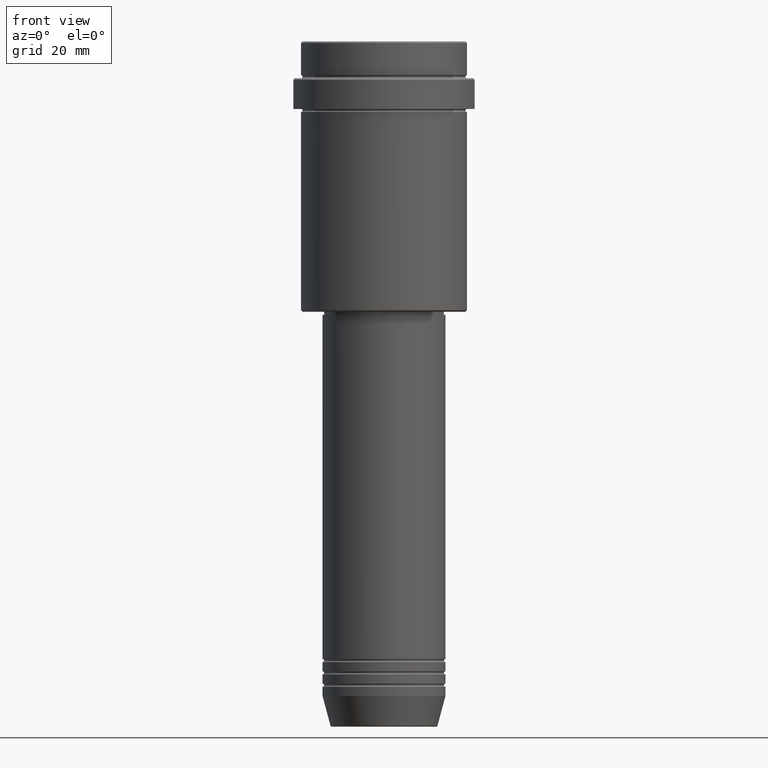
[diagram: clean part render]
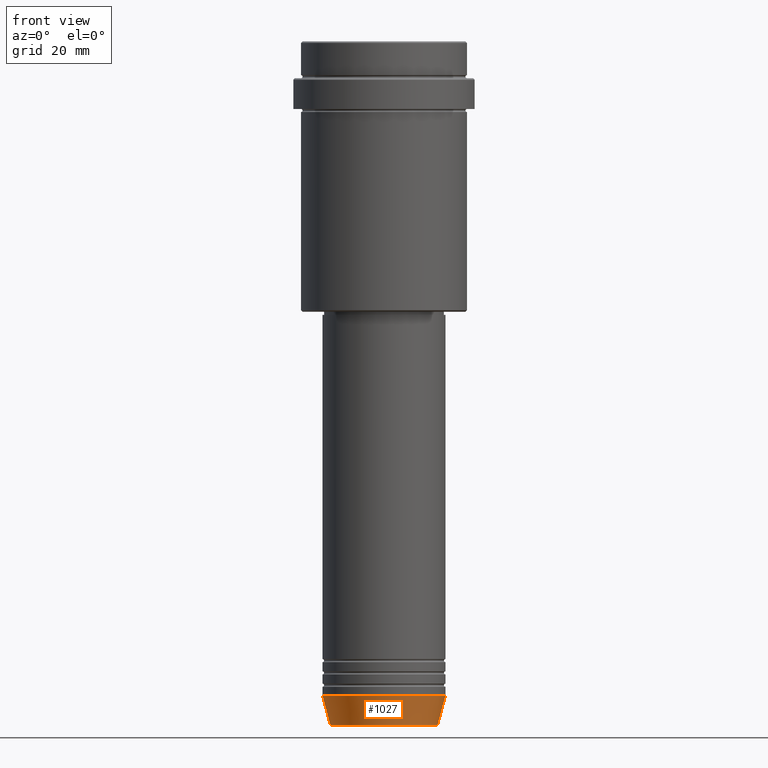
[diagram: same view with one face highlighted and labeled with its STEP entity id]
A machine part, front view. The second image highlights one B-rep face of the part: STEP entity #1027.
In plain terms, the highlighted conical surface has half-angle 15 deg.
Its self-contained STEP definition (entity closure, byte-faithful):
#33 = CONICAL_SURFACE ( 'NONE', #1088, 20.00000000000000000, 0.2617993877991499074 ) ;
#54 = CARTESIAN_POINT ( 'NONE',  ( 0.000000000000000000, 0.000000000000000000, -222.6294095225512706 ) ) ;
#98 = VECTOR ( 'NONE', #753, 1000.000000000000114 ) ;
#102 = ORIENTED_EDGE ( 'NONE', *, *, #857, .F. ) ;
#120 = DIRECTION ( 'NONE',  ( -0.000000000000000000, -0.000000000000000000, 1.000000000000000000 ) ) ;
#152 = CARTESIAN_POINT ( 'NONE',  ( 20.00000000000000000, 0.000000000000000000, -213.0000000000000284 ) ) ;
#162 = FACE_OUTER_BOUND ( 'NONE', #530, .T. ) ;
#164 = DIRECTION ( 'NONE',  ( -0.000000000000000000, -0.000000000000000000, 1.000000000000000000 ) ) ;
#200 = EDGE_CURVE ( 'NONE', #542, #664, #364, .T. ) ;
#217 = VERTEX_POINT ( 'NONE', #152 ) ;
#256 = CARTESIAN_POINT ( 'NONE',  ( 0.000000000000000000, 0.000000000000000000, -213.0000000000000284 ) ) ;
#284 = AXIS2_PLACEMENT_3D ( 'NONE', #256, #120, #362 ) ;
#297 = ORIENTED_EDGE ( 'NONE', *, *, #200, .F. ) ;
#304 = VECTOR ( 'NONE', #1264, 1000.000000000000114 ) ;
#306 = AXIS2_PLACEMENT_3D ( 'NONE', #54, #164, #597 ) ;
#362 = DIRECTION ( 'NONE',  ( 1.000000000000000000, 0.000000000000000000, 0.000000000000000000 ) ) ;
#364 = LINE ( 'NONE', #798, #304 ) ;
#439 = CARTESIAN_POINT ( 'NONE',  ( 20.00000000000000000, 0.000000000000000000, -213.0000000000000284 ) ) ;
#484 = DIRECTION ( 'NONE',  ( -0.000000000000000000, -0.000000000000000000, 1.000000000000000000 ) ) ;
#493 = CARTESIAN_POINT ( 'NONE',  ( -17.41980749484382329, 2.291302373663531915E-15, -222.6294095225512706 ) ) ;
#505 = DIRECTION ( 'NONE',  ( 1.000000000000000000, 0.000000000000000000, 0.000000000000000000 ) ) ;
#530 = EDGE_LOOP ( 'NONE', ( #297, #569, #1162, #102 ) ) ;
#542 = VERTEX_POINT ( 'NONE', #493 ) ;
#569 = ORIENTED_EDGE ( 'NONE', *, *, #614, .T. ) ;
#597 = DIRECTION ( 'NONE',  ( 1.000000000000000000, 0.000000000000000000, 0.000000000000000000 ) ) ;
#614 = EDGE_CURVE ( 'NONE', #542, #1063, #924, .T. ) ;
#664 = VERTEX_POINT ( 'NONE', #1173 ) ;
#753 = DIRECTION ( 'NONE',  ( 0.2588190451025211836, 0.000000000000000000, 0.9659258262890680902 ) ) ;
#798 = CARTESIAN_POINT ( 'NONE',  ( -20.00000000000000000, 2.449293598294706513E-15, -213.0000000000000284 ) ) ;
#857 = EDGE_CURVE ( 'NONE', #664, #217, #1285, .T. ) ;
#924 = CIRCLE ( 'NONE', #306, 17.41980749484382329 ) ;
#1027 = ADVANCED_FACE ( 'NONE', ( #162 ), #33, .T. ) ;
#1063 = VERTEX_POINT ( 'NONE', #1168 ) ;
#1082 = LINE ( 'NONE', #439, #98 ) ;
#1088 = AXIS2_PLACEMENT_3D ( 'NONE', #1253, #484, #505 ) ;
#1154 = EDGE_CURVE ( 'NONE', #1063, #217, #1082, .T. ) ;
#1162 = ORIENTED_EDGE ( 'NONE', *, *, #1154, .T. ) ;
#1168 = CARTESIAN_POINT ( 'NONE',  ( 17.41980749484382329, 0.000000000000000000, -222.6294095225512706 ) ) ;
#1173 = CARTESIAN_POINT ( 'NONE',  ( -20.00000000000000000, 2.449293598294706513E-15, -213.0000000000000284 ) ) ;
#1253 = CARTESIAN_POINT ( 'NONE',  ( 0.000000000000000000, 0.000000000000000000, -213.0000000000000284 ) ) ;
#1264 = DIRECTION ( 'NONE',  ( -0.2588190451025211836, 3.169619151431770488E-17, 0.9659258262890680902 ) ) ;
#1285 = CIRCLE ( 'NONE', #284, 20.00000000000000000 ) ;